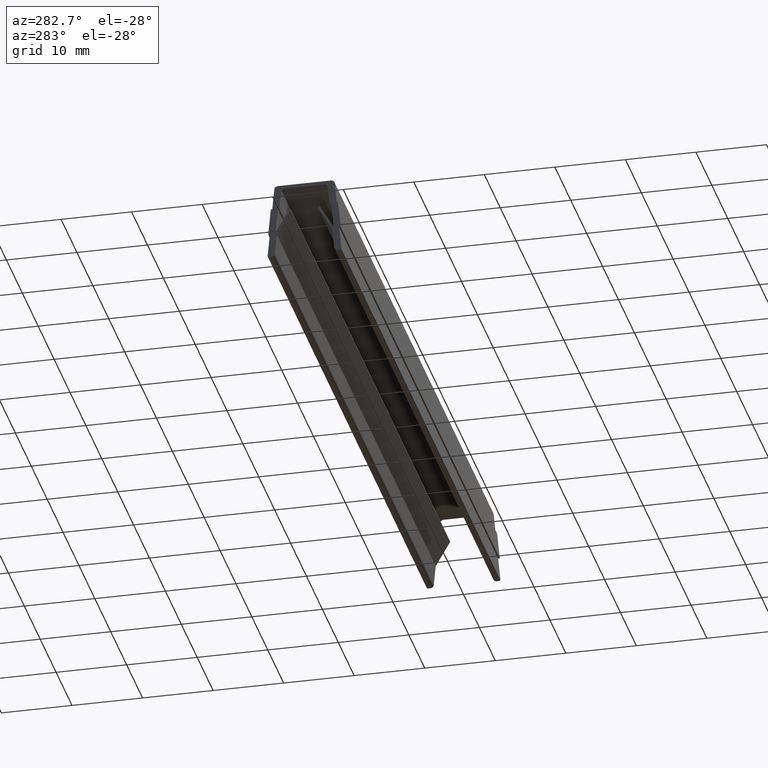
[diagram: clean part render]
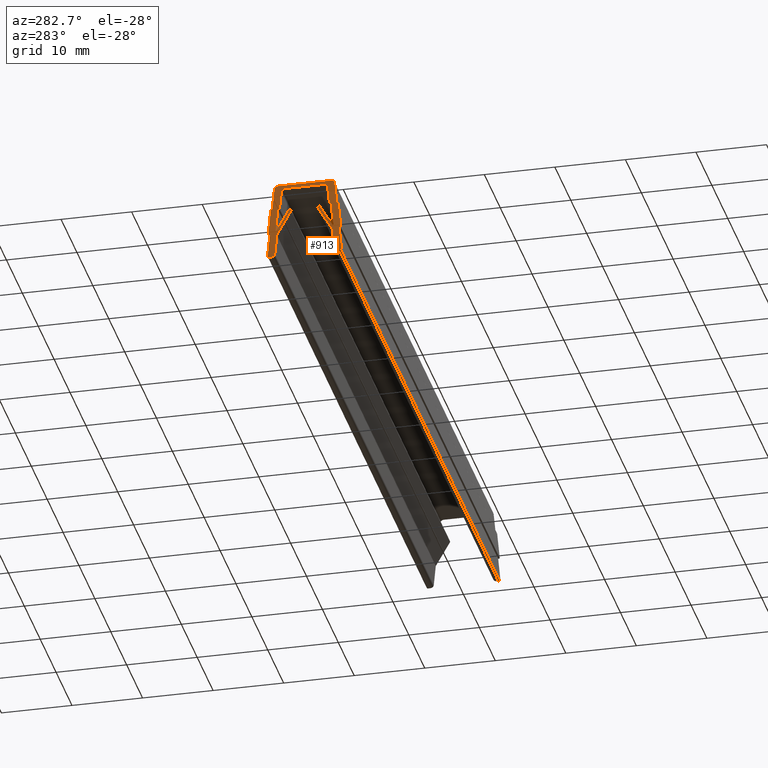
[diagram: same view with one face highlighted and labeled with its STEP entity id]
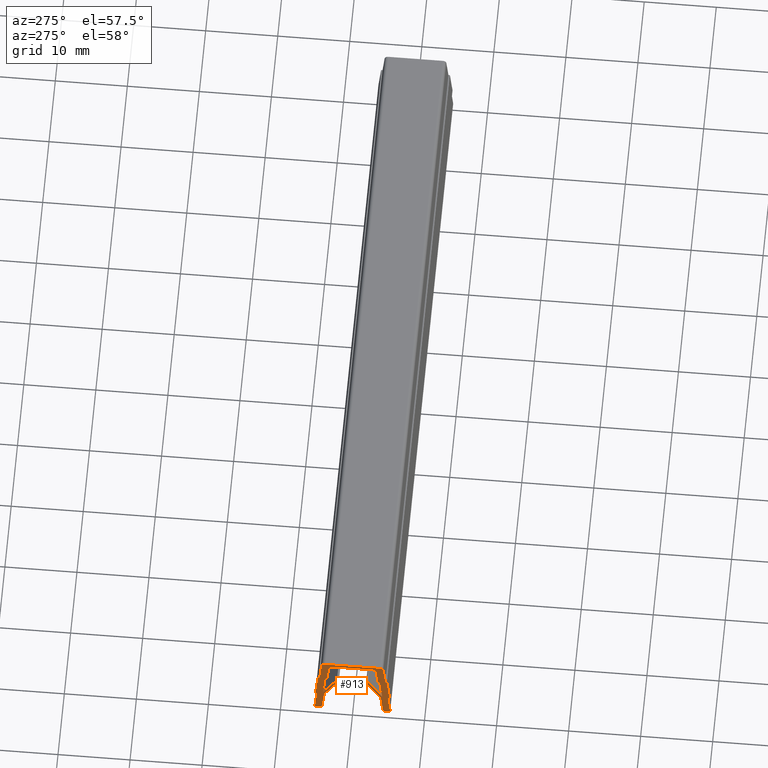
[diagram: same view with one face highlighted and labeled with its STEP entity id]
A machine part, auxiliary view. The second image highlights one B-rep face of the part: STEP entity #913.
A second angle (auxiliary view) of the same face is appended — the face is thin or edge-on in the first view.
In plain terms, the highlighted planar face has unit normal (-1, 0, 0).
Its self-contained STEP definition (entity closure, byte-faithful):
#18=CARTESIAN_POINT('',(0.0,-5.139582192692494,-6.903750880637259));
#19=VERTEX_POINT('',#18);
#26=CARTESIAN_POINT('',(0.0,-5.049062525062098,-7.003300482837174));
#27=VERTEX_POINT('',#26);
#28=CARTESIAN_POINT('',(0.0,-5.039582192692492,-6.903750880637259));
#29=DIRECTION('',(-1.0,0.0,0.0));
#30=DIRECTION('',(0.0,-1.0,6.123234E-017));
#31=AXIS2_PLACEMENT_3D('',#28,#29,#30);
#32=CIRCLE('',#31,0.099999999999999);
#33=EDGE_CURVE('',#27,#19,#32,.T.);
#49=CARTESIAN_POINT('',(0.0,5.230047398954959,-10.299999999999997));
#50=VERTEX_POINT('',#49);
#51=CARTESIAN_POINT('',(0.0,5.030047398954963,-10.499999999999996));
#52=VERTEX_POINT('',#51);
#53=CARTESIAN_POINT('',(0.0,5.030047398954963,-10.299999999999997));
#54=DIRECTION('',(-1.0,0.0,0.0));
#55=DIRECTION('',(0.0,-1.0,6.123234E-017));
#56=AXIS2_PLACEMENT_3D('',#53,#54,#55);
#57=CIRCLE('',#56,0.199999999999999);
#58=EDGE_CURVE('',#50,#52,#57,.T.);
#102=CARTESIAN_POINT('',(0.0,-5.230047398954959,-10.299999999999995));
#103=VERTEX_POINT('',#102);
#110=CARTESIAN_POINT('',(0.0,-5.030047398954956,-10.499999999999995));
#111=VERTEX_POINT('',#110);
#112=CARTESIAN_POINT('',(0.0,-5.030047398954956,-10.299999999999995));
#113=DIRECTION('',(-1.0,0.0,0.0));
#114=DIRECTION('',(0.0,-1.0,6.123234E-017));
#115=AXIS2_PLACEMENT_3D('',#112,#113,#114);
#116=CIRCLE('',#115,0.200000000000000);
#117=EDGE_CURVE('',#111,#103,#116,.T.);
#144=CARTESIAN_POINT('',(0.0,1.891829769726392,-3.531263165628652));
#145=VERTEX_POINT('',#144);
#152=CARTESIAN_POINT('',(0.0,1.918624688969501,-3.631263165628653));
#153=VERTEX_POINT('',#152);
#154=CARTESIAN_POINT('',(0.0,2.091829769726395,-3.531263165628652));
#155=DIRECTION('',(-1.0,0.0,0.0));
#156=DIRECTION('',(0.0,6.123234E-017,1.0));
#157=AXIS2_PLACEMENT_3D('',#154,#155,#156);
#158=CIRCLE('',#157,0.200000000000000);
#159=EDGE_CURVE('',#153,#145,#158,.T.);
#542=CARTESIAN_POINT('',(0.0,5.753052138850457,-11.049999999999997));
#543=DIRECTION('',(-1.0,0.0,0.0));
#544=DIRECTION('',(0.0,-1.0,0.0));
#545=AXIS2_PLACEMENT_3D('',#542,#543,#544);
#546=PLANE('',#545);
#547=CARTESIAN_POINT('',(0.0,-3.779367162833395,0.500000000000002));
#548=VERTEX_POINT('',#547);
#549=CARTESIAN_POINT('',(0.0,3.779367162833410,0.500000000000000));
#550=VERTEX_POINT('',#549);
#551=CARTESIAN_POINT('',(0.0,-3.779367162833395,0.500000000000002));
#552=DIRECTION('',(0.0,1.0,0.0));
#553=VECTOR('',#552,7.558734325666800);
#554=LINE('',#551,#553);
#555=EDGE_CURVE('',#548,#550,#554,.T.);
#556=ORIENTED_EDGE('',*,*,#555,.T.);
#557=CARTESIAN_POINT('',(0.0,4.277114899130375,0.047404546313999));
#558=VERTEX_POINT('',#557);
#559=CARTESIAN_POINT('',(0.0,3.779367162833410,0.0));
#560=DIRECTION('',(-1.0,0.0,0.0));
#561=DIRECTION('',(0.0,-1.0,6.123234E-017));
#562=AXIS2_PLACEMENT_3D('',#559,#560,#561);
#563=CIRCLE('',#562,0.500000000000001);
#564=EDGE_CURVE('',#550,#558,#563,.T.);
#565=ORIENTED_EDGE('',*,*,#564,.T.);
#566=CARTESIAN_POINT('',(0.0,4.570277129245234,-3.030798869891961));
#567=VERTEX_POINT('',#566);
#568=CARTESIAN_POINT('',(0.0,4.570277129245234,-3.030798869891961));
#569=DIRECTION('',(0.0,-0.094809092627996,0.995495472593952));
#570=VECTOR('',#569,3.092132009586260);
#571=LINE('',#568,#570);
#572=EDGE_CURVE('',#567,#558,#571,.T.);
#573=ORIENTED_EDGE('',*,*,#572,.F.);
#574=CARTESIAN_POINT('',(0.0,4.669827308336835,-3.021318482583666));
#575=VERTEX_POINT('',#574);
#576=CARTESIAN_POINT('',(0.0,4.669827308336835,-3.021318482583667));
#577=DIRECTION('',(0.0,-0.995496021999178,-0.094803323696022));
#578=VECTOR('',#577,0.100000579501746);
#579=LINE('',#576,#578);
#580=EDGE_CURVE('',#575,#567,#579,.T.);
#581=ORIENTED_EDGE('',*,*,#580,.F.);
#582=CARTESIAN_POINT('',(0.0,4.778857187965834,-3.111387175520783));
#583=VERTEX_POINT('',#582);
#584=CARTESIAN_POINT('',(0.0,4.679307640706441,-3.120868084783584));
#585=DIRECTION('',(-1.0,0.0,0.0));
#586=DIRECTION('',(0.0,-1.0,6.123234E-017));
#587=AXIS2_PLACEMENT_3D('',#584,#585,#586);
#588=CIRCLE('',#587,0.099999999999999);
#589=EDGE_CURVE('',#575,#583,#588,.T.);
#590=ORIENTED_EDGE('',*,*,#589,.T.);
#591=CARTESIAN_POINT('',(0.0,5.139131739951893,-6.894269971374458));
#592=VERTEX_POINT('',#591);
#593=CARTESIAN_POINT('',(0.0,5.139131739951893,-6.894269971374458));
#594=DIRECTION('',(0.0,-0.094809092627995,0.995495472593952));
#595=VECTOR('',#594,3.799999999996641);
#596=LINE('',#593,#595);
#597=EDGE_CURVE('',#592,#583,#596,.T.);
#598=ORIENTED_EDGE('',*,*,#597,.F.);
#599=CARTESIAN_POINT('',(0.0,5.049062525062112,-7.003300482837176));
#600=VERTEX_POINT('',#599);
#601=CARTESIAN_POINT('',(0.0,5.039582192692500,-6.903750880637259));
#602=DIRECTION('',(-1.0,0.0,0.0));
#603=DIRECTION('',(0.0,-1.0,6.123234E-017));
#604=AXIS2_PLACEMENT_3D('',#601,#602,#603);
#605=CIRCLE('',#604,0.099999999999999);
#606=EDGE_CURVE('',#592,#600,#605,.T.);
#607=ORIENTED_EDGE('',*,*,#606,.T.);
#608=CARTESIAN_POINT('',(0.0,4.918168175802023,-7.015765845921164));
#609=VERTEX_POINT('',#608);
#610=CARTESIAN_POINT('',(0.0,4.918168175802023,-7.015765845921164));
#611=DIRECTION('',(0.0,0.995496021999177,0.094803323696029));
#612=VECTOR('',#611,0.131486561842026);
#613=LINE('',#610,#612);
#614=EDGE_CURVE('',#609,#600,#613,.T.);
#615=ORIENTED_EDGE('',*,*,#614,.F.);
#616=CARTESIAN_POINT('',(0.0,5.229146493473756,-10.281038181474397));
#617=VERTEX_POINT('',#616);
#618=CARTESIAN_POINT('',(0.0,5.229146493473763,-10.281038181474397));
#619=DIRECTION('',(0.0,-0.094809092627995,0.995495472593952));
#620=VECTOR('',#619,3.280047398954960);
#621=LINE('',#618,#620);
#622=EDGE_CURVE('',#617,#609,#621,.T.);
#623=ORIENTED_EDGE('',*,*,#622,.F.);
#624=CARTESIAN_POINT('',(0.0,5.030047398954963,-10.299999999999997));
#625=DIRECTION('',(-1.0,0.0,0.0));
#626=DIRECTION('',(0.0,-1.0,6.123234E-017));
#627=AXIS2_PLACEMENT_3D('',#624,#625,#626);
#628=CIRCLE('',#627,0.199999999999999);
#629=EDGE_CURVE('',#617,#50,#628,.T.);
#630=ORIENTED_EDGE('',*,*,#629,.T.);
#631=ORIENTED_EDGE('',*,*,#58,.T.);
#632=CARTESIAN_POINT('',(0.0,4.704643407374505,-10.499999999999996));
#633=VERTEX_POINT('',#632);
#634=CARTESIAN_POINT('',(0.0,5.030047398954963,-10.499999999999996));
#635=DIRECTION('',(0.0,-1.0,0.0));
#636=VECTOR('',#635,0.325403991580458);
#637=LINE('',#634,#636);
#638=EDGE_CURVE('',#52,#633,#637,.T.);
#639=ORIENTED_EDGE('',*,*,#638,.T.);
#640=CARTESIAN_POINT('',(0.0,4.206895671077525,-10.047404546313993));
#641=VERTEX_POINT('',#640);
#642=CARTESIAN_POINT('',(0.0,4.704643407374505,-9.999999999999996));
#643=DIRECTION('',(-1.0,0.0,0.0));
#644=DIRECTION('',(0.0,-1.0,6.123234E-017));
#645=AXIS2_PLACEMENT_3D('',#642,#643,#644);
#646=CIRCLE('',#645,0.500000000000001);
#647=EDGE_CURVE('',#633,#641,#646,.T.);
#648=ORIENTED_EDGE('',*,*,#647,.T.);
#649=CARTESIAN_POINT('',(0.0,3.927156392899910,-7.110142125449002));
#650=VERTEX_POINT('',#649);
#651=CARTESIAN_POINT('',(0.0,4.206895671077533,-10.047404546313993));
#652=DIRECTION('',(0.0,-0.094809092627996,0.995495472593952));
#653=VECTOR('',#652,2.950553268927881);
#654=LINE('',#651,#653);
#655=EDGE_CURVE('',#641,#650,#654,.T.);
#656=ORIENTED_EDGE('',*,*,#655,.T.);
#657=CARTESIAN_POINT('',(0.0,3.927156392899910,-7.110142125449003));
#658=DIRECTION('',(0.0,-0.500000000000000,0.866025403784439));
#659=VECTOR('',#658,4.017063407860809);
#660=LINE('',#657,#659);
#661=EDGE_CURVE('',#650,#153,#660,.T.);
#662=ORIENTED_EDGE('',*,*,#661,.T.);
#663=ORIENTED_EDGE('',*,*,#159,.T.);
#664=CARTESIAN_POINT('',(0.0,2.072869104987184,-3.332163961228818));
#665=VERTEX_POINT('',#664);
#666=CARTESIAN_POINT('',(0.0,2.091829769726395,-3.531263165628652));
#667=DIRECTION('',(-1.0,0.0,0.0));
#668=DIRECTION('',(0.0,6.123234E-017,1.0));
#669=AXIS2_PLACEMENT_3D('',#666,#667,#668);
#670=CIRCLE('',#669,0.200000000000000);
#671=EDGE_CURVE('',#145,#665,#670,.T.);
#672=ORIENTED_EDGE('',*,*,#671,.T.);
#673=CARTESIAN_POINT('',(0.0,2.157600921254939,-3.324094759918649));
#674=VERTEX_POINT('',#673);
#675=CARTESIAN_POINT('',(0.0,2.072869104987184,-3.332163961228820));
#676=DIRECTION('',(0.0,0.995496021999176,0.094803323696035));
#677=VECTOR('',#676,0.085115173135092);
#678=LINE('',#675,#677);
#679=EDGE_CURVE('',#665,#674,#678,.T.);
#680=ORIENTED_EDGE('',*,*,#679,.T.);
#681=CARTESIAN_POINT('',(0.0,4.123385394520483,-6.728933344344589));
#682=VERTEX_POINT('',#681);
#683=CARTESIAN_POINT('',(0.0,2.157600921254947,-3.324094759918647));
#684=DIRECTION('',(0.0,0.500000000000000,-0.866025403784439));
#685=VECTOR('',#684,3.931568946531083);
#686=LINE('',#683,#685);
#687=EDGE_CURVE('',#674,#682,#686,.T.);
#688=ORIENTED_EDGE('',*,*,#687,.T.);
#689=CARTESIAN_POINT('',(0.0,3.778364550742964,-3.106214484680597));
#690=VERTEX_POINT('',#689);
#691=CARTESIAN_POINT('',(0.0,4.123385394520483,-6.728933344344589));
#692=DIRECTION('',(0.0,-0.094809092627996,0.995495472593952));
#693=VECTOR('',#692,3.639111336412522);
#694=LINE('',#691,#693);
#695=EDGE_CURVE('',#682,#690,#694,.T.);
#696=ORIENTED_EDGE('',*,*,#695,.T.);
#697=CARTESIAN_POINT('',(0.0,3.647469047696163,-3.118679957642283));
#698=VERTEX_POINT('',#697);
#699=CARTESIAN_POINT('',(0.0,3.778364550742964,-3.106214484680595));
#700=DIRECTION('',(0.0,-0.995496021999177,-0.094803323696031));
#701=VECTOR('',#700,0.131487720848883);
#702=LINE('',#699,#701);
#703=EDGE_CURVE('',#690,#698,#702,.T.);
#704=ORIENTED_EDGE('',*,*,#703,.T.);
#705=CARTESIAN_POINT('',(0.0,3.538439168067164,-3.028611264705165));
#706=VERTEX_POINT('',#705);
#707=CARTESIAN_POINT('',(0.0,3.637988715326564,-3.019130355442369));
#708=DIRECTION('',(-1.0,0.0,0.0));
#709=DIRECTION('',(0.0,-1.0,6.123234E-017));
#710=AXIS2_PLACEMENT_3D('',#707,#708,#709);
#711=CIRCLE('',#710,0.099999999999999);
#712=EDGE_CURVE('',#698,#706,#711,.T.);
#713=ORIENTED_EDGE('',*,*,#712,.T.);
#714=CARTESIAN_POINT('',(0.0,3.293104328922482,-0.452595453686001));
#715=VERTEX_POINT('',#714);
#716=CARTESIAN_POINT('',(0.0,3.538439168067164,-3.028611264705165));
#717=DIRECTION('',(0.0,-0.094809092627995,0.995495472593952));
#718=VECTOR('',#717,2.587672050689359);
#719=LINE('',#716,#718);
#720=EDGE_CURVE('',#706,#715,#719,.T.);
#721=ORIENTED_EDGE('',*,*,#720,.T.);
#722=CARTESIAN_POINT('',(0.0,2.795356592625502,0.0));
#723=VERTEX_POINT('',#722);
#724=CARTESIAN_POINT('',(0.0,2.795356592625502,-0.500000000000000));
#725=DIRECTION('',(1.0,0.0,0.0));
#726=DIRECTION('',(0.0,-1.0,6.123234E-017));
#727=AXIS2_PLACEMENT_3D('',#724,#725,#726);
#728=CIRCLE('',#727,0.500000000000001);
#729=EDGE_CURVE('',#715,#723,#728,.T.);
#730=ORIENTED_EDGE('',*,*,#729,.T.);
#731=CARTESIAN_POINT('',(0.0,-2.795356592625495,1.776357E-015));
#732=VERTEX_POINT('',#731);
#733=CARTESIAN_POINT('',(0.0,2.795356592625502,0.0));
#734=DIRECTION('',(0.0,-1.0,0.0));
#735=VECTOR('',#734,5.590713185251001);
#736=LINE('',#733,#735);
#737=EDGE_CURVE('',#723,#732,#736,.T.);
#738=ORIENTED_EDGE('',*,*,#737,.T.);
#739=CARTESIAN_POINT('',(0.0,-3.293104328922475,-0.452595453686000));
#740=VERTEX_POINT('',#739);
#741=CARTESIAN_POINT('',(0.0,-2.795356592625495,-0.499999999999998));
#742=DIRECTION('',(1.0,0.0,0.0));
#743=DIRECTION('',(0.0,-1.0,6.123234E-017));
#744=AXIS2_PLACEMENT_3D('',#741,#742,#743);
#745=CIRCLE('',#744,0.500000000000001);
#746=EDGE_CURVE('',#732,#740,#745,.T.);
#747=ORIENTED_EDGE('',*,*,#746,.T.);
#748=CARTESIAN_POINT('',(0.0,-3.538439168067150,-3.028611264705165));
#749=VERTEX_POINT('',#748);
#750=CARTESIAN_POINT('',(0.0,-3.293104328922468,-0.452595453686000));
#751=DIRECTION('',(0.0,-0.094809092627995,-0.995495472593952));
#752=VECTOR('',#751,2.587672050689359);
#753=LINE('',#750,#752);
#754=EDGE_CURVE('',#740,#749,#753,.T.);
#755=ORIENTED_EDGE('',*,*,#754,.T.);
#756=CARTESIAN_POINT('',(0.0,-3.647469047696148,-3.118679957642283));
#757=VERTEX_POINT('',#756);
#758=CARTESIAN_POINT('',(0.0,-3.637988715326543,-3.019130355442369));
#759=DIRECTION('',(-1.0,0.0,0.0));
#760=DIRECTION('',(0.0,-1.0,6.123234E-017));
#761=AXIS2_PLACEMENT_3D('',#758,#759,#760);
#762=CIRCLE('',#761,0.099999999999999);
#763=EDGE_CURVE('',#749,#757,#762,.T.);
#764=ORIENTED_EDGE('',*,*,#763,.T.);
#765=CARTESIAN_POINT('',(0.0,-3.778364550742950,-3.106214484680597));
#766=VERTEX_POINT('',#765);
#767=CARTESIAN_POINT('',(0.0,-3.647469047696148,-3.118679957642284));
#768=DIRECTION('',(0.0,-0.995496021999177,0.094803323696032));
#769=VECTOR('',#768,0.131487720848881);
#770=LINE('',#767,#769);
#771=EDGE_CURVE('',#757,#766,#770,.T.);
#772=ORIENTED_EDGE('',*,*,#771,.T.);
#773=CARTESIAN_POINT('',(0.0,-4.123385394520476,-6.728933344344589));
#774=VERTEX_POINT('',#773);
#775=CARTESIAN_POINT('',(0.0,-3.778364550742950,-3.106214484680597));
#776=DIRECTION('',(0.0,-0.094809092627995,-0.995495472593952));
#777=VECTOR('',#776,3.639111336412523);
#778=LINE('',#775,#777);
#779=EDGE_CURVE('',#766,#774,#778,.T.);
#780=ORIENTED_EDGE('',*,*,#779,.T.);
#781=CARTESIAN_POINT('',(0.0,-2.157600921254932,-3.324094759918649));
#782=VERTEX_POINT('',#781);
#783=CARTESIAN_POINT('',(0.0,-4.123385394520476,-6.728933344344589));
#784=DIRECTION('',(0.0,0.500000000000000,0.866025403784439));
#785=VECTOR('',#784,3.931568946531082);
#786=LINE('',#783,#785);
#787=EDGE_CURVE('',#774,#782,#786,.T.);
#788=ORIENTED_EDGE('',*,*,#787,.T.);
#789=CARTESIAN_POINT('',(0.0,-2.072869104987177,-3.332163961228818));
#790=VERTEX_POINT('',#789);
#791=CARTESIAN_POINT('',(0.0,-2.157600921254932,-3.324094759918649));
#792=DIRECTION('',(0.0,0.995496021999177,-0.094803323696029));
#793=VECTOR('',#792,0.085115173135088);
#794=LINE('',#791,#793);
#795=EDGE_CURVE('',#782,#790,#794,.T.);
#796=ORIENTED_EDGE('',*,*,#795,.T.);
#797=CARTESIAN_POINT('',(0.0,-1.918624688969494,-3.631263165628653));
#798=VERTEX_POINT('',#797);
#799=CARTESIAN_POINT('',(0.0,-2.091829769726388,-3.531263165628652));
#800=DIRECTION('',(-1.0,0.0,0.0));
#801=DIRECTION('',(0.0,6.123234E-017,1.0));
#802=AXIS2_PLACEMENT_3D('',#799,#800,#801);
#803=CIRCLE('',#802,0.200000000000000);
#804=EDGE_CURVE('',#790,#798,#803,.T.);
#805=ORIENTED_EDGE('',*,*,#804,.T.);
#806=CARTESIAN_POINT('',(0.0,-3.927156392899903,-7.110142125449004));
#807=VERTEX_POINT('',#806);
#808=CARTESIAN_POINT('',(0.0,-1.918624688969494,-3.631263165628652));
#809=DIRECTION('',(0.0,-0.500000000000000,-0.866025403784439));
#810=VECTOR('',#809,4.017063407860811);
#811=LINE('',#808,#810);
#812=EDGE_CURVE('',#798,#807,#811,.T.);
#813=ORIENTED_EDGE('',*,*,#812,.T.);
#814=CARTESIAN_POINT('',(0.0,-4.206895671077518,-10.047404546313993));
#815=VERTEX_POINT('',#814);
#816=CARTESIAN_POINT('',(0.0,-3.927156392899903,-7.110142125449003));
#817=DIRECTION('',(0.0,-0.094809092627996,-0.995495472593952));
#818=VECTOR('',#817,2.950553268927880);
#819=LINE('',#816,#818);
#820=EDGE_CURVE('',#807,#815,#819,.T.);
#821=ORIENTED_EDGE('',*,*,#820,.T.);
#822=CARTESIAN_POINT('',(0.0,-4.704643407374491,-10.499999999999995));
#823=VERTEX_POINT('',#822);
#824=CARTESIAN_POINT('',(0.0,-4.704643407374491,-9.999999999999995));
#825=DIRECTION('',(-1.0,0.0,0.0));
#826=DIRECTION('',(0.0,-1.0,6.123234E-017));
#827=AXIS2_PLACEMENT_3D('',#824,#825,#826);
#828=CIRCLE('',#827,0.500000000000001);
#829=EDGE_CURVE('',#815,#823,#828,.T.);
#830=ORIENTED_EDGE('',*,*,#829,.T.);
#831=CARTESIAN_POINT('',(0.0,-4.704643407374491,-10.499999999999996));
#832=DIRECTION('',(0.0,-1.0,0.0));
#833=VECTOR('',#832,0.325403991580464);
#834=LINE('',#831,#833);
#835=EDGE_CURVE('',#823,#111,#834,.T.);
#836=ORIENTED_EDGE('',*,*,#835,.T.);
#837=ORIENTED_EDGE('',*,*,#117,.T.);
#838=CARTESIAN_POINT('',(0.0,-5.229146493473742,-10.281038181474397));
#839=VERTEX_POINT('',#838);
#840=CARTESIAN_POINT('',(0.0,-5.030047398954956,-10.299999999999995));
#841=DIRECTION('',(-1.0,0.0,0.0));
#842=DIRECTION('',(0.0,-1.0,6.123234E-017));
#843=AXIS2_PLACEMENT_3D('',#840,#841,#842);
#844=CIRCLE('',#843,0.200000000000000);
#845=EDGE_CURVE('',#103,#839,#844,.T.);
#846=ORIENTED_EDGE('',*,*,#845,.T.);
#847=CARTESIAN_POINT('',(0.0,-4.918168175802009,-7.015765845921161));
#848=VERTEX_POINT('',#847);
#849=CARTESIAN_POINT('',(0.0,-5.229146493473749,-10.281038181474397));
#850=DIRECTION('',(0.0,0.094809092627996,0.995495472593952));
#851=VECTOR('',#850,3.280047398954964);
#852=LINE('',#849,#851);
#853=EDGE_CURVE('',#839,#848,#852,.T.);
#854=ORIENTED_EDGE('',*,*,#853,.T.);
#855=CARTESIAN_POINT('',(0.0,-4.918168175802009,-7.015765845921163));
#856=DIRECTION('',(0.0,-0.995496021999177,0.094803323696026));
#857=VECTOR('',#856,0.131486561842029);
#858=LINE('',#855,#857);
#859=EDGE_CURVE('',#848,#27,#858,.T.);
#860=ORIENTED_EDGE('',*,*,#859,.T.);
#861=ORIENTED_EDGE('',*,*,#33,.T.);
#862=CARTESIAN_POINT('',(0.0,-5.139131739951885,-6.894269971374458));
#863=VERTEX_POINT('',#862);
#864=CARTESIAN_POINT('',(0.0,-5.039582192692492,-6.903750880637259));
#865=DIRECTION('',(-1.0,0.0,0.0));
#866=DIRECTION('',(0.0,-1.0,6.123234E-017));
#867=AXIS2_PLACEMENT_3D('',#864,#865,#866);
#868=CIRCLE('',#867,0.099999999999999);
#869=EDGE_CURVE('',#19,#863,#868,.T.);
#870=ORIENTED_EDGE('',*,*,#869,.T.);
#871=CARTESIAN_POINT('',(0.0,-4.778857187965826,-3.111387175520783));
#872=VERTEX_POINT('',#871);
#873=CARTESIAN_POINT('',(0.0,-5.139131739951885,-6.894269971374458));
#874=DIRECTION('',(0.0,0.094809092627995,0.995495472593952));
#875=VECTOR('',#874,3.799999999996643);
#876=LINE('',#873,#875);
#877=EDGE_CURVE('',#863,#872,#876,.T.);
#878=ORIENTED_EDGE('',*,*,#877,.T.);
#879=CARTESIAN_POINT('',(0.0,-4.669827308336828,-3.021318482583666));
#880=VERTEX_POINT('',#879);
#881=CARTESIAN_POINT('',(0.0,-4.679307640706426,-3.120868084783584));
#882=DIRECTION('',(-1.0,0.0,0.0));
#883=DIRECTION('',(0.0,-1.0,6.123234E-017));
#884=AXIS2_PLACEMENT_3D('',#881,#882,#883);
#885=CIRCLE('',#884,0.099999999999999);
#886=EDGE_CURVE('',#872,#880,#885,.T.);
#887=ORIENTED_EDGE('',*,*,#886,.T.);
#888=CARTESIAN_POINT('',(0.0,-4.570277129245227,-3.030798869891961));
#889=VERTEX_POINT('',#888);
#890=CARTESIAN_POINT('',(0.0,-4.669827308336828,-3.021318482583667));
#891=DIRECTION('',(0.0,0.995496021999178,-0.094803323696020));
#892=VECTOR('',#891,0.100000579501748);
#893=LINE('',#890,#892);
#894=EDGE_CURVE('',#880,#889,#893,.T.);
#895=ORIENTED_EDGE('',*,*,#894,.T.);
#896=CARTESIAN_POINT('',(0.0,-4.277114899130368,0.047404546314000));
#897=VERTEX_POINT('',#896);
#898=CARTESIAN_POINT('',(0.0,-4.570277129245227,-3.030798869891961));
#899=DIRECTION('',(0.0,0.094809092627996,0.995495472593952));
#900=VECTOR('',#899,3.092132009586260);
#901=LINE('',#898,#900);
#902=EDGE_CURVE('',#889,#897,#901,.T.);
#903=ORIENTED_EDGE('',*,*,#902,.T.);
#904=CARTESIAN_POINT('',(0.0,-3.779367162833395,1.776357E-015));
#905=DIRECTION('',(-1.0,0.0,0.0));
#906=DIRECTION('',(0.0,-1.0,6.123234E-017));
#907=AXIS2_PLACEMENT_3D('',#904,#905,#906);
#908=CIRCLE('',#907,0.500000000000001);
#909=EDGE_CURVE('',#897,#548,#908,.T.);
#910=ORIENTED_EDGE('',*,*,#909,.T.);
#911=EDGE_LOOP('',(#556,#565,#573,#581,#590,#598,#607,#615,#623,#630,#631,#639,#648,#656,#662,#663,#672,#680,#688,#696,#704,#713,#721,#730,#738,#747,#755,#764,#772,#780,#788,#796,#805,#813,#821,#830,#836,#837,#846,#854,#860,#861,#870,#878,#887,#895,#903,#910));
#912=FACE_OUTER_BOUND('',#911,.T.);
#913=ADVANCED_FACE('',(#912),#546,.T.);